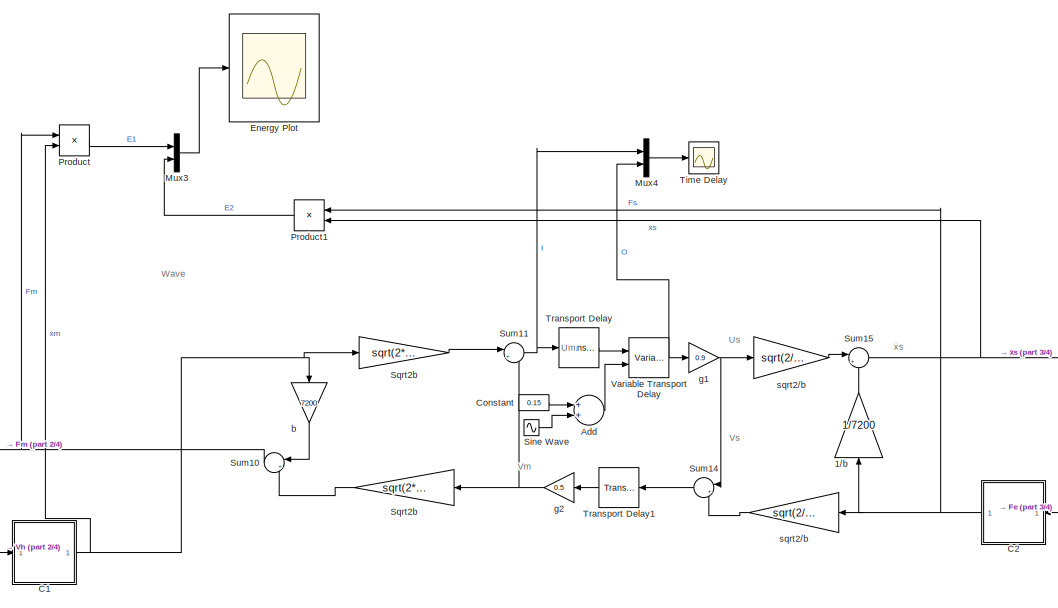
[diagram: root canvas - part 1/4, top center region]
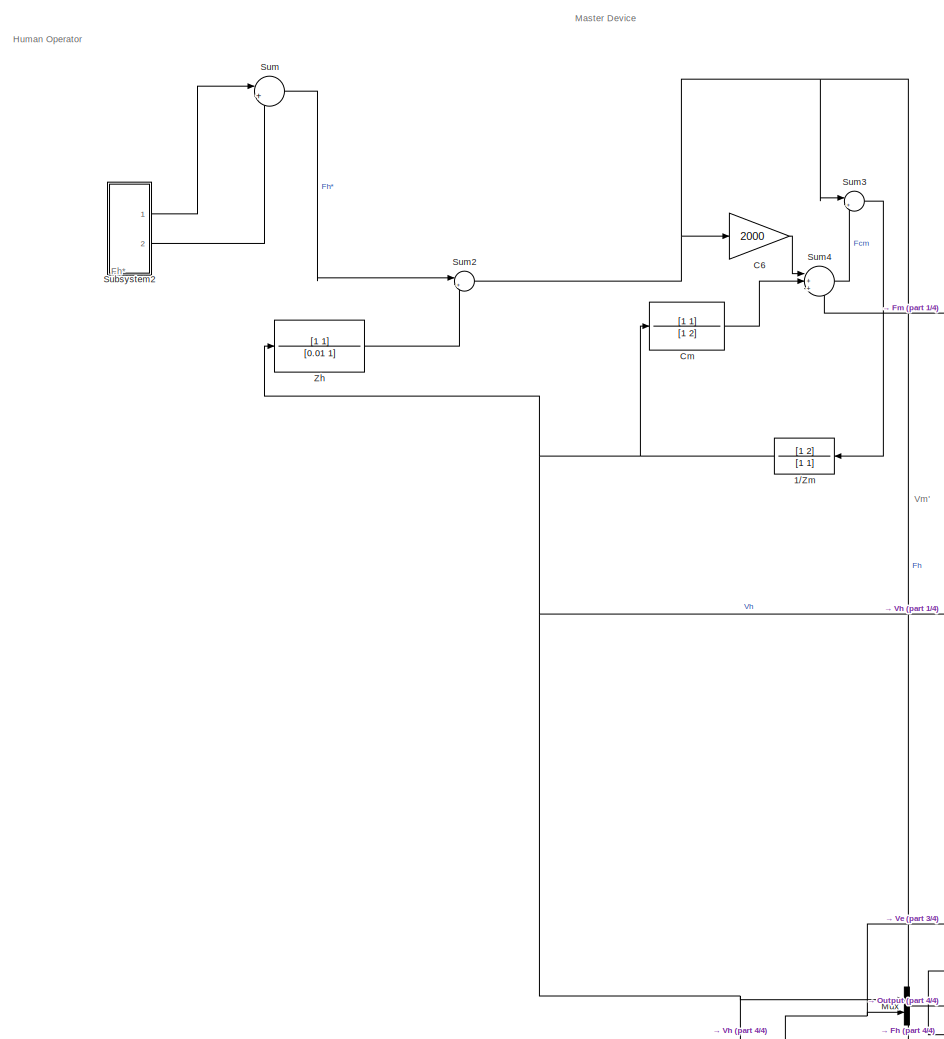
[diagram: root canvas - part 2/4, left side, full height]
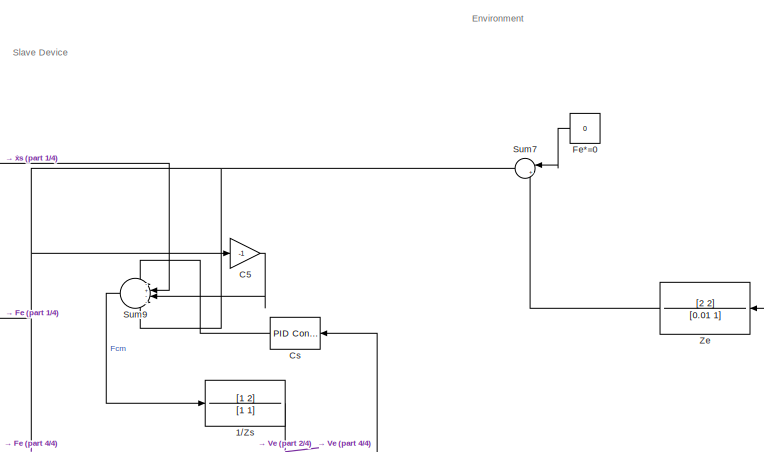
[diagram: root canvas - part 3/4, top right region]
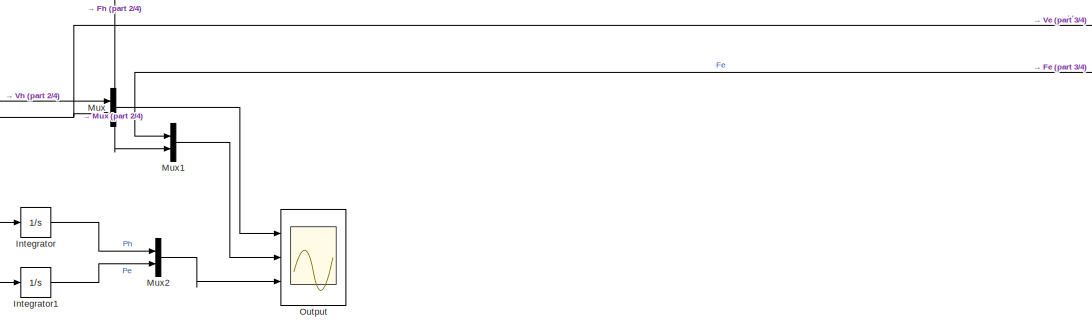
[diagram: root canvas - part 4/4, bottom center region]
MODEL slx_77ca6467b947
KIND model
CONFIG AbsTol = auto
CONFIG EnableMultiTasking = off
CONFIG FixedStep = 0.001
CONFIG MaxStep = 0.2
CONFIG MinStep = auto
CONFIG RelTol = 1e-3
CONFIG SampleTimeConstraint = Unconstrained
CONFIG Solver = VariableStepAuto
CONFIG SolverName = VariableStepAuto
CONFIG StartTime = 0.0
CONFIG StopTime = 20
BLOCK [Gain]  Sqrt2b
  Gain = sqrt(2*7200)
  OutDataTypeStr = Inherit: Inherit via internal rule
  ParamDataTypeStr = Inherit: Inherit via internal rule
  SaturateOnIntegerOverflow = off
BLOCK [Gain]  sqrt2//b
  Gain = sqrt(2/7200)
  OutDataTypeStr = Inherit: Inherit via internal rule
  ParamDataTypeStr = Inherit: Inherit via internal rule
  SaturateOnIntegerOverflow = off
BLOCK [TransferFcn] 1//Zm
  Denominator = [1 1]
  Numerator = [1 2]
BLOCK [TransferFcn] 1//Zs
  Denominator = [1 1]
  Numerator = [1 2]
BLOCK [Gain] 1//b 
  Gain = 1/7200
  OutDataTypeStr = Inherit: Inherit via internal rule
  ParamDataTypeStr = Inherit: Inherit via internal rule
  SaturateOnIntegerOverflow = off
BLOCK [Sum] Add
  InputSameDT = off
  OutDataTypeStr = Inherit: Inherit via internal rule
  Ports = [2, 1]
  SaturateOnIntegerOverflow = off
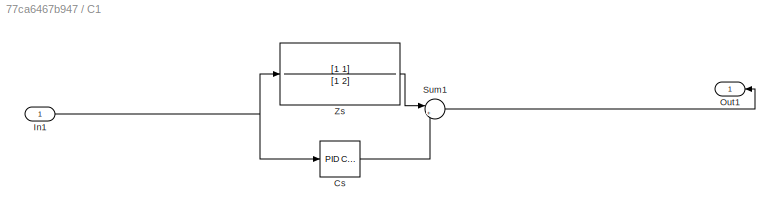
BLOCK [SubSystem] C1 
  Ports = [1, 1]
  RequestExecContextInheritance = off
BLOCK [Reference] C1 /Cs  REF=simulink/Continuous/PID Controller
  Ports = [1, 1]
  SourceBlock = simulink/Continuous/PID Controller
  SourceProductBaseCode = SL
  SourceProductName = Simulink
  SourceType = PID 1dof
BLOCK [Inport] C1 /In1
  IconDisplay = Port number
BLOCK [Outport] C1 /Out1
  IconDisplay = Port number
BLOCK [Sum] C1 /Sum1
  IconShape = round
  InputSameDT = off
  Inputs = |++
  OutDataTypeStr = Inherit: Inherit via internal rule
  Ports = [2, 1]
  SaturateOnIntegerOverflow = off
BLOCK [TransferFcn] C1 /Zs
  Denominator = [1 2]
  Numerator = [1 1]
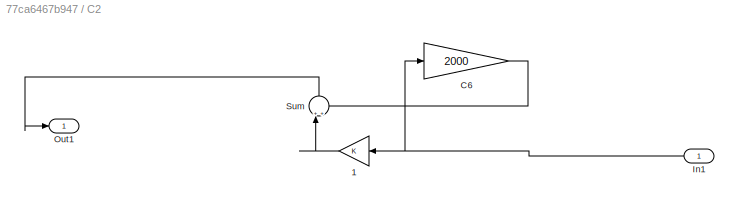
BLOCK [SubSystem] C2 
  Ports = [1, 1]
  RequestExecContextInheritance = off
BLOCK [Gain] C2 /1
  OutDataTypeStr = Inherit: Inherit via internal rule
  ParamDataTypeStr = Inherit: Inherit via internal rule
  SaturateOnIntegerOverflow = off
BLOCK [Gain] C2 /C6
  Gain = 2000
  OutDataTypeStr = Inherit: Inherit via internal rule
  ParamDataTypeStr = Inherit: Inherit via internal rule
  SaturateOnIntegerOverflow = off
BLOCK [Inport] C2 /In1
  IconDisplay = Port number
BLOCK [Outport] C2 /Out1
  IconDisplay = Port number
BLOCK [Sum] C2 /Sum
  IconShape = round
  InputSameDT = off
  OutDataTypeStr = Inherit: Inherit via internal rule
  Ports = [2, 1]
  SaturateOnIntegerOverflow = off
BLOCK [Gain] C5
  Gain = -1
  OutDataTypeStr = Inherit: Inherit via internal rule
  ParamDataTypeStr = Inherit: Inherit via internal rule
  SaturateOnIntegerOverflow = off
BLOCK [Gain] C6
  Gain = 2000
  OutDataTypeStr = Inherit: Inherit via internal rule
  ParamDataTypeStr = Inherit: Inherit via internal rule
  SaturateOnIntegerOverflow = off
BLOCK [TransferFcn] Cm
  Denominator = [1 2]
  Numerator = [1 1]
BLOCK [Constant] Constant
  Value = 0.15
BLOCK [Reference] Cs  REF=simulink/Continuous/PID Controller
  Ports = [1, 1]
  SourceBlock = simulink/Continuous/PID Controller
  SourceProductBaseCode = SL
  SourceProductName = Simulink
  SourceType = PID 1dof
BLOCK [Scope] Energy Plot
  Floating = off
  NumInputPorts = 1
  Ports = [1]
  ScopeSpecificationString = Simulink.scopes.TimeScopeBlockCfg('CurrentConfiguration', extmgr.ConfigurationSet(extmgr.Configuration('Core','General UI',true),extmgr.Configuration('Core','Source UI',true),extmgr.Configuration('Sources','WiredSimulink',true,'DataLoggingVariableName','ScopeData1'),extmgr.Configuration('Visuals','Time Domain',true,'SerializedDisplays',{struct('MinYLimReal','-64.58406','MaxYLimReal','515.41018','Y...<+1472ch>
BLOCK [Constant] Fe*=0
  Value = 0
BLOCK [Integrator] Integrator
  Ports = [1, 1]
BLOCK [Integrator] Integrator1
  Ports = [1, 1]
BLOCK [Mux] Mux
  DisplayOption = bar
  Inputs = 2
  Ports = [2, 1]
BLOCK [Mux] Mux1
  DisplayOption = bar
  Inputs = 2
  Ports = [2, 1]
BLOCK [Mux] Mux2
  DisplayOption = bar
  Inputs = 2
  Ports = [2, 1]
BLOCK [Mux] Mux3
  DisplayOption = bar
  Inputs = 2
  Ports = [2, 1]
BLOCK [Mux] Mux4
  DisplayOption = bar
  Inputs = 2
  Ports = [2, 1]
BLOCK [Scope] Output
  Floating = off
  NumInputPorts = 3
  Ports = [3]
  ScopeSpecificationString = Simulink.scopes.TimeScopeBlockCfg('CurrentConfiguration', extmgr.ConfigurationSet(extmgr.Configuration('Core','General UI',true),extmgr.Configuration('Core','Source UI',true),extmgr.Configuration('Sources','WiredSimulink',true),extmgr.Configuration('Visuals','Time Domain',true,'SerializedDisplays',{struct('MinYLimReal','-0.25477','MaxYLimReal','0.28806','YLabelReal','','MinYLimMag','0.00000','MaxY...<+2778ch>
BLOCK [Product] Product
  InputSameDT = off
  OutDataTypeStr = Inherit: Inherit via internal rule
  Ports = [2, 1]
  RndMeth = Floor
  SaturateOnIntegerOverflow = off
BLOCK [Product] Product1
  InputSameDT = off
  OutDataTypeStr = Inherit: Inherit via internal rule
  Ports = [2, 1]
  RndMeth = Floor
  SaturateOnIntegerOverflow = off
BLOCK [Sin] Sine Wave
  Amplitude = 0.1
  Frequency = 20
  Ports = [0, 1]
  SampleTime = 0
BLOCK [Gain] Sqrt2b
  Gain = sqrt(2*7200)
  OutDataTypeStr = Inherit: Inherit via internal rule
  ParamDataTypeStr = Inherit: Inherit via internal rule
  SaturateOnIntegerOverflow = off
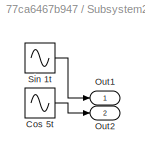
BLOCK [SubSystem] Subsystem2
  Ports = [0, 2]
  RequestExecContextInheritance = off
BLOCK [Sin] Subsystem2/Cos 5t 
  Frequency = 5
  Phase = pi/2
  Ports = [0, 1]
  SampleTime = 0
BLOCK [Outport] Subsystem2/Out1
  IconDisplay = Port number
BLOCK [Outport] Subsystem2/Out2
  IconDisplay = Port number
  Port = 2
BLOCK [Sin] Subsystem2/Sin 1t
  Ports = [0, 1]
  SampleTime = 0
BLOCK [Sum] Sum
  IconShape = round
  InputSameDT = off
  Inputs = |++
  OutDataTypeStr = Inherit: Inherit via internal rule
  Ports = [2, 1]
  SaturateOnIntegerOverflow = off
BLOCK [Sum] Sum10
  IconShape = round
  InputSameDT = off
  Inputs = |+-
  OutDataTypeStr = Inherit: Inherit via internal rule
  Ports = [2, 1]
  SaturateOnIntegerOverflow = off
BLOCK [Sum] Sum11
  IconShape = round
  InputSameDT = off
  Inputs = |+-
  OutDataTypeStr = Inherit: Inherit via internal rule
  Ports = [2, 1]
  SaturateOnIntegerOverflow = off
BLOCK [Sum] Sum14
  IconShape = round
  InputSameDT = off
  Inputs = |+-
  OutDataTypeStr = Inherit: Inherit via internal rule
  Ports = [2, 1]
  SaturateOnIntegerOverflow = off
BLOCK [Sum] Sum15
  IconShape = round
  InputSameDT = off
  Inputs = |+-
  OutDataTypeStr = Inherit: Inherit via internal rule
  Ports = [2, 1]
  SaturateOnIntegerOverflow = off
BLOCK [Sum] Sum2
  IconShape = round
  InputSameDT = off
  Inputs = |+-
  OutDataTypeStr = Inherit: Inherit via internal rule
  Ports = [2, 1]
  SaturateOnIntegerOverflow = off
BLOCK [Sum] Sum3
  IconShape = round
  InputSameDT = off
  Inputs = |++
  OutDataTypeStr = Inherit: Inherit via internal rule
  Ports = [2, 1]
  SaturateOnIntegerOverflow = off
BLOCK [Sum] Sum4
  IconShape = round
  InputSameDT = off
  Inputs = |++-
  OutDataTypeStr = Inherit: Inherit via internal rule
  Ports = [3, 1]
  SaturateOnIntegerOverflow = off
BLOCK [Sum] Sum7
  IconShape = round
  InputSameDT = off
  Inputs = |++
  OutDataTypeStr = Inherit: Inherit via internal rule
  Ports = [2, 1]
  SaturateOnIntegerOverflow = off
BLOCK [Sum] Sum9
  IconShape = round
  InputSameDT = off
  Inputs = -+--
  OutDataTypeStr = Inherit: Inherit via internal rule
  Ports = [4, 1]
  SaturateOnIntegerOverflow = off
BLOCK [Scope] Time Delay
  Floating = off
  NumInputPorts = 1
  Ports = [1]
  ScopeSpecificationString = Simulink.scopes.TimeScopeBlockCfg('CurrentConfiguration', extmgr.ConfigurationSet(extmgr.Configuration('Core','General UI',true),extmgr.Configuration('Core','Source UI',true),extmgr.Configuration('Sources','WiredSimulink',true,'DataLoggingVariableName','ScopeData1'),extmgr.Configuration('Visuals','Time Domain',true,'SerializedDisplays',{struct('MinYLimReal','-64.74661','MaxYLimReal','64.54299','YL...<+1476ch>
BLOCK [TransportDelay] Transport Delay
  DelayTime = 0.15
  Ports = [1, 1]
BLOCK [TransportDelay] Transport Delay1
  DelayTime = 0.15
  Ports = [1, 1]
BLOCK [VariableTransportDelay] Variable Transport Delay
  MaximumDelay = 10
  Ports = [2, 1]
  VariableDelayType = Variable transport delay
BLOCK [TransferFcn] Ze
  Denominator = [0.01 1]
  Numerator = [2 2]
BLOCK [TransferFcn] Zh
  Denominator = [0.01 1]
  Numerator = [1 1]
BLOCK [Gain] b
  Gain = 7200
  OutDataTypeStr = Inherit: Inherit via internal rule
  ParamDataTypeStr = Inherit: Inherit via internal rule
  SaturateOnIntegerOverflow = off
BLOCK [Gain] g1
  Gain = 0.9
  OutDataTypeStr = Inherit: Inherit via internal rule
  ParamDataTypeStr = Inherit: Inherit via internal rule
  SaturateOnIntegerOverflow = off
BLOCK [Gain] g2
  Gain = 0.5
  OutDataTypeStr = Inherit: Inherit via internal rule
  ParamDataTypeStr = Inherit: Inherit via internal rule
  SaturateOnIntegerOverflow = off
BLOCK [Gain] sqrt2//b
  Gain = sqrt(2/7200)
  OutDataTypeStr = Inherit: Inherit via internal rule
  ParamDataTypeStr = Inherit: Inherit via internal rule
  SaturateOnIntegerOverflow = off
ANNOTATION (root): Environment
ANNOTATION (root): Fh*
ANNOTATION (root): Human Operator
ANNOTATION (root): Master Device
ANNOTATION (root): Slave Device
ANNOTATION (root): Um
ANNOTATION (root): Us
ANNOTATION (root): Vm
ANNOTATION (root): Vm'
ANNOTATION (root): Vs
ANNOTATION (root): Wave
ANNOTATION (root): ẋs
LINE  Sqrt2b:1 -> Sum11:1
LINE  sqrt2//b:1 -> Sum14:2
NET 1//Zm:1 -> C1 :1, Cm:1, Integrator:1, Mux:1, Zh:1
NET 1//Zs:1 -> Cs:1, Integrator1:1, Mux:2, Ze:1
LINE 1//b :1 -> Sum15:2
LINE Add:1 -> Variable Transport Delay:2
LINE C1 /Cs:1 -> C1 /Sum1:2
NET C1 /In1:1 -> C1 /Cs:1, C1 /Zs:1
LINE C1 /Sum1:1 -> C1 /Out1:1
LINE C1 /Zs:1 -> C1 /Sum1:1
NET C1 :1 ->  Sqrt2b:1, Product:2, b:1
LINE C2 /1:1 -> C2 /Sum:1
LINE C2 /C6:1 -> C2 /Sum:2
NET C2 /In1:1 -> C2 /1:1, C2 /C6:1
LINE C2 /Sum:1 -> C2 /Out1:1
NET C2 :1 ->  sqrt2//b:1, 1//b :1, Product1:1
LINE C5:1 -> Sum9:3
LINE C6:1 -> Sum4:1
LINE Cm:1 -> Sum4:2
LINE Constant:1 -> Add:1
LINE Cs:1 -> Sum9:1
LINE Fe*=0:1 -> Sum7:1
LINE Integrator1:1 -> Mux2:2
LINE Integrator:1 -> Mux2:1
LINE Mux1:1 -> Output:2
LINE Mux2:1 -> Output:3
LINE Mux3:1 -> Energy Plot:1
LINE Mux4:1 -> Time Delay:1
LINE Mux:1 -> Output:1
LINE Product1:1 -> Mux3:2
LINE Product:1 -> Mux3:1
LINE Sine Wave:1 -> Add:2
LINE Sqrt2b:1 -> Sum10:2
LINE Subsystem2/Cos 5t :1 -> Subsystem2/Out2:1
LINE Subsystem2/Sin 1t:1 -> Subsystem2/Out1:1
LINE Subsystem2:1 -> Sum:1
LINE Subsystem2:2 -> Sum:2
NET Sum10:1 -> Product:1, Sum4:3
NET Sum11:1 -> Mux4:1, Transport Delay:1
LINE Sum14:1 -> Transport Delay1:1
NET Sum15:1 -> Product1:2, Sum9:2
NET Sum2:1 -> C6:1, Mux1:2, Sum3:1
LINE Sum3:1 -> 1//Zm:1
LINE Sum4:1 -> Sum3:2
NET Sum7:1 -> C2 :1, C5:1, Mux1:1, Sum9:4
LINE Sum9:1 -> 1//Zs:1
LINE Sum:1 -> Sum2:1
LINE Transport Delay1:1 -> g2:1
LINE Transport Delay:1 -> Variable Transport Delay:1
NET Variable Transport Delay:1 -> Mux4:2, g1:1
LINE Ze:1 -> Sum7:2
LINE Zh:1 -> Sum2:2
LINE b:1 -> Sum10:1
NET g1:1 -> Sum14:1, sqrt2//b:1
NET g2:1 -> Sqrt2b:1, Sum11:2
LINE sqrt2//b:1 -> Sum15:1
note: NET lines group one-source signal fan-out (src -> all destinations, sorted); 1:1 wires keep LINE
